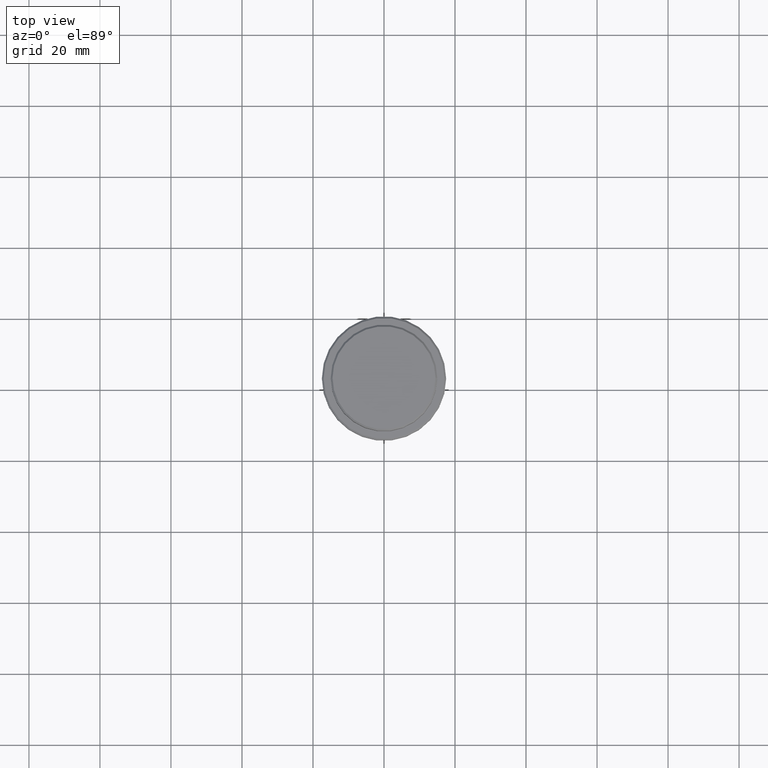
[diagram: clean part render]
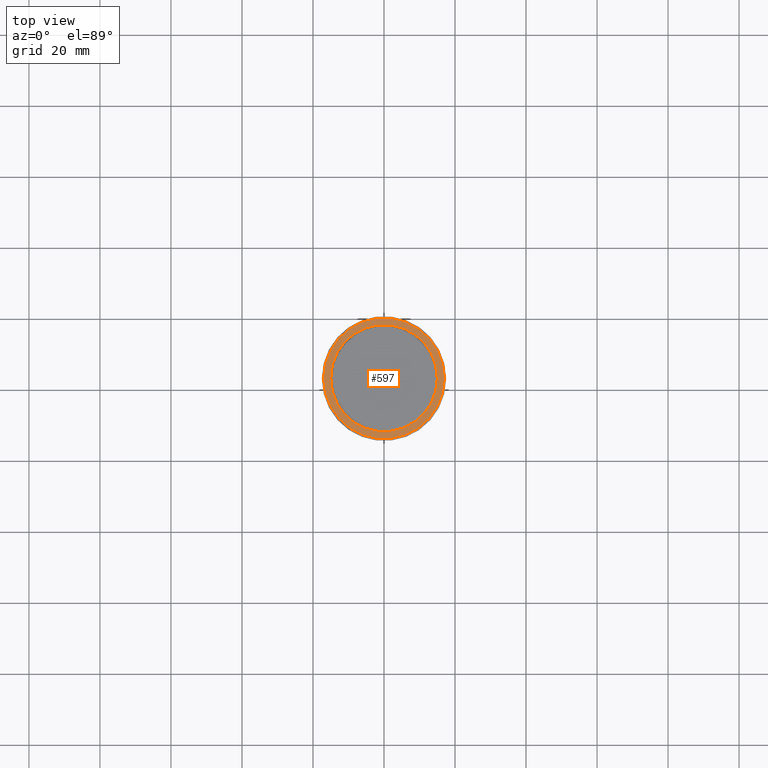
[diagram: same view with one face highlighted and labeled with its STEP entity id]
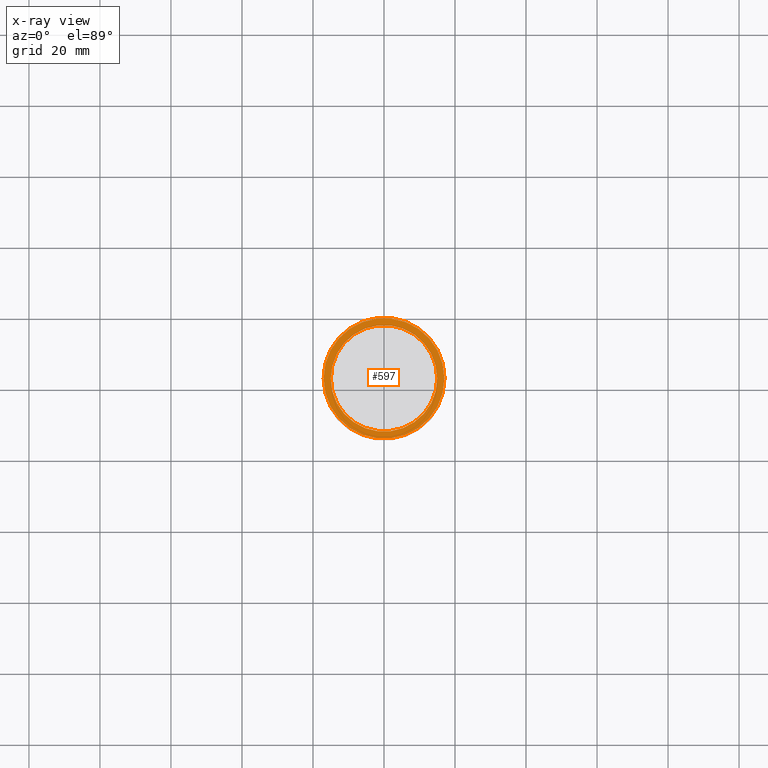
[diagram: x-ray of the same camera — body ghosted, the highlighted face saturated]
A machine part, top view. The second image highlights one B-rep face of the part: STEP entity #597.
The next image is the same camera in x-ray: the body ghosted, the highlighted face saturated — about 0% of this face is hidden behind the body in this view.
In plain terms, the highlighted planar face has unit normal (0, -0, 1).
Its self-contained STEP definition (entity closure, byte-faithful):
#4 = AXIS2_PLACEMENT_3D ( 'NONE', #670, #1117, #928 ) ;
#22 = CIRCLE ( 'NONE', #4, 14.99999999999999289 ) ;
#53 = CARTESIAN_POINT ( 'NONE',  ( -16.99999999999998579, 0.000000000000000000, -9.000000000000000000 ) ) ;
#150 = CARTESIAN_POINT ( 'NONE',  ( 16.99999999999998579, 2.112515728529183278E-15, -9.000000000000000000 ) ) ;
#165 = EDGE_CURVE ( 'NONE', #1322, #441, #392, .T. ) ;
#174 = CARTESIAN_POINT ( 'NONE',  ( 0.000000000000000000, 0.000000000000000000, -9.000000000000000000 ) ) ;
#191 = FACE_OUTER_BOUND ( 'NONE', #203, .T. ) ;
#203 = EDGE_LOOP ( 'NONE', ( #976, #241 ) ) ;
#224 = CARTESIAN_POINT ( 'NONE',  ( 0.000000000000000000, 0.000000000000000000, -9.000000000000000000 ) ) ;
#239 = VERTEX_POINT ( 'NONE', #718 ) ;
#241 = ORIENTED_EDGE ( 'NONE', *, *, #688, .T. ) ;
#253 = ORIENTED_EDGE ( 'NONE', *, *, #912, .T. ) ;
#341 = CARTESIAN_POINT ( 'NONE',  ( 0.000000000000000000, 14.49999999999999467, -9.000000000000000000 ) ) ;
#389 = DIRECTION ( 'NONE',  ( -0.000000000000000000, -0.000000000000000000, 1.000000000000000000 ) ) ;
#392 = CIRCLE ( 'NONE', #948, 16.99999999999998579 ) ;
#441 = VERTEX_POINT ( 'NONE', #150 ) ;
#474 = EDGE_CURVE ( 'NONE', #239, #814, #1079, .T. ) ;
#580 = DIRECTION ( 'NONE',  ( 0.000000000000000000, -0.000000000000000000, 1.000000000000000000 ) ) ;
#585 = PLANE ( 'NONE',  #1237 ) ;
#597 = ADVANCED_FACE ( 'NONE', ( #191, #1169 ), #585, .T. ) ;
#668 = DIRECTION ( 'NONE',  ( 1.000000000000000000, 0.000000000000000000, 0.000000000000000000 ) ) ;
#670 = CARTESIAN_POINT ( 'NONE',  ( 0.000000000000000000, 0.000000000000000000, -9.000000000000000000 ) ) ;
#688 = EDGE_CURVE ( 'NONE', #441, #1322, #775, .T. ) ;
#697 = DIRECTION ( 'NONE',  ( 1.000000000000000000, 0.000000000000000000, 0.000000000000000000 ) ) ;
#707 = CARTESIAN_POINT ( 'NONE',  ( -14.99999999999999289, 1.836970198721028800E-15, -9.000000000000000000 ) ) ;
#718 = CARTESIAN_POINT ( 'NONE',  ( 14.99999999999999289, 0.000000000000000000, -9.000000000000000000 ) ) ;
#775 = CIRCLE ( 'NONE', #972, 16.99999999999998579 ) ;
#793 = CARTESIAN_POINT ( 'NONE',  ( 0.000000000000000000, 0.000000000000000000, -9.000000000000000000 ) ) ;
#814 = VERTEX_POINT ( 'NONE', #707 ) ;
#912 = EDGE_CURVE ( 'NONE', #814, #239, #22, .T. ) ;
#928 = DIRECTION ( 'NONE',  ( 1.000000000000000000, 0.000000000000000000, 0.000000000000000000 ) ) ;
#948 = AXIS2_PLACEMENT_3D ( 'NONE', #174, #389, #1038 ) ;
#972 = AXIS2_PLACEMENT_3D ( 'NONE', #793, #1238, #1312 ) ;
#976 = ORIENTED_EDGE ( 'NONE', *, *, #165, .T. ) ;
#992 = AXIS2_PLACEMENT_3D ( 'NONE', #224, #1205, #668 ) ;
#1036 = EDGE_LOOP ( 'NONE', ( #1371, #253 ) ) ;
#1038 = DIRECTION ( 'NONE',  ( 1.000000000000000000, 0.000000000000000000, 0.000000000000000000 ) ) ;
#1079 = CIRCLE ( 'NONE', #992, 14.99999999999999289 ) ;
#1117 = DIRECTION ( 'NONE',  ( 0.000000000000000000, 0.000000000000000000, -1.000000000000000000 ) ) ;
#1169 = FACE_BOUND ( 'NONE', #1036, .T. ) ;
#1205 = DIRECTION ( 'NONE',  ( 0.000000000000000000, 0.000000000000000000, -1.000000000000000000 ) ) ;
#1237 = AXIS2_PLACEMENT_3D ( 'NONE', #341, #580, #697 ) ;
#1238 = DIRECTION ( 'NONE',  ( -0.000000000000000000, -0.000000000000000000, 1.000000000000000000 ) ) ;
#1312 = DIRECTION ( 'NONE',  ( 1.000000000000000000, 0.000000000000000000, 0.000000000000000000 ) ) ;
#1322 = VERTEX_POINT ( 'NONE', #53 ) ;
#1371 = ORIENTED_EDGE ( 'NONE', *, *, #474, .T. ) ;